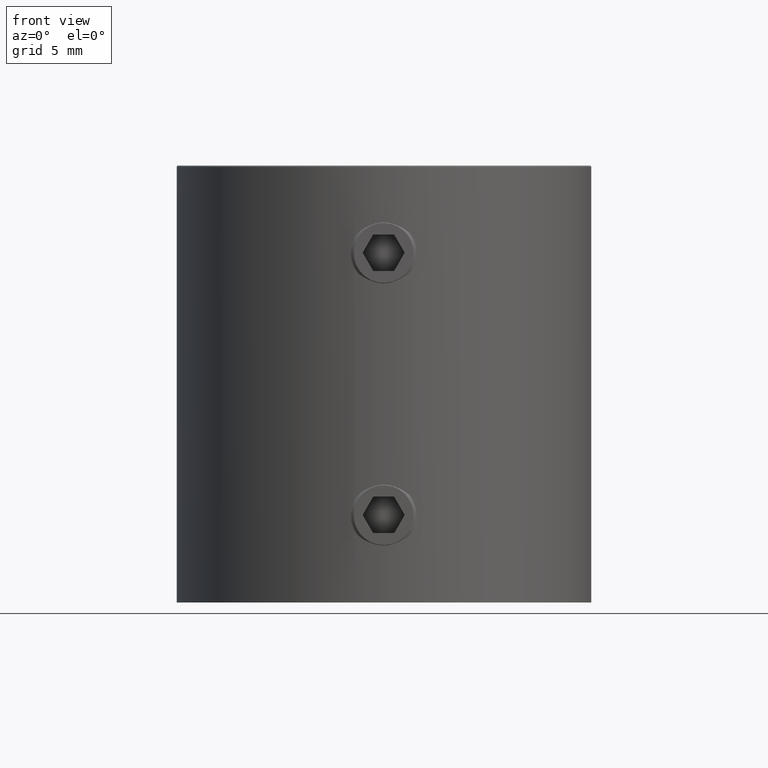
[diagram: clean part render]
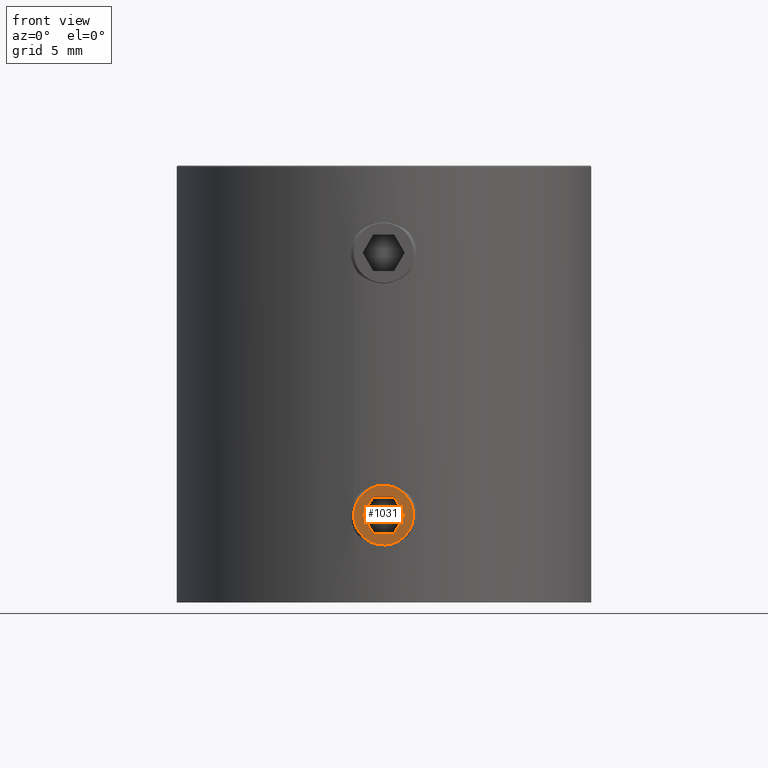
[diagram: same view with one face highlighted and labeled with its STEP entity id]
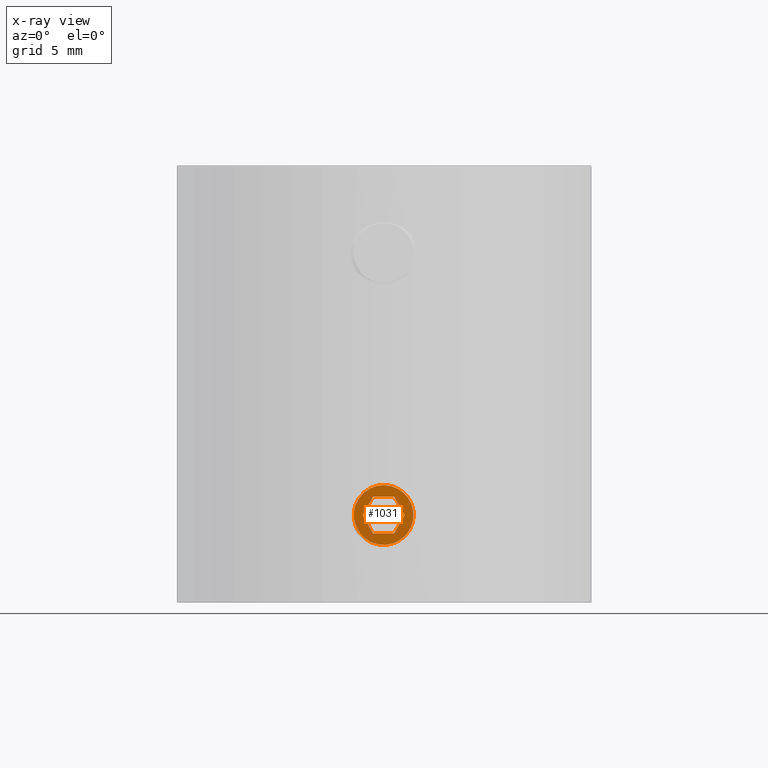
[diagram: x-ray of the same camera — body ghosted, the highlighted face saturated]
A machine part, front view. The second image highlights one B-rep face of the part: STEP entity #1031.
The next image is the same camera in x-ray: the body ghosted, the highlighted face saturated — about 0% of this face is hidden behind the body in this view.
In plain terms, the highlighted planar face has unit normal (-0, -1, 0).
Its self-contained STEP definition (entity closure, byte-faithful):
#361 = VERTEX_POINT ( 'NONE', #13298 ) ;
#741 = DIRECTION ( 'NONE',  ( -0.000000000000000000, 0.000000000000000000, -1.000000000000000000 ) ) ;
#1031 = ADVANCED_FACE ( 'NONE', ( #2178, #10938 ), #11927, .T. ) ;
#1222 = VECTOR ( 'NONE', #741, 1000.000000000000000 ) ;
#1224 = ORIENTED_EDGE ( 'NONE', *, *, #6086, .T. ) ;
#1266 = ORIENTED_EDGE ( 'NONE', *, *, #5324, .F. ) ;
#1318 = DIRECTION ( 'NONE',  ( 0.000000000000000000, 0.000000000000000000, 1.000000000000000000 ) ) ;
#1362 = CARTESIAN_POINT ( 'NONE',  ( 0.000000000000000000, 0.000000000000000000, 0.000000000000000000 ) ) ;
#1396 = VERTEX_POINT ( 'NONE', #5788 ) ;
#1568 = VERTEX_POINT ( 'NONE', #5322 ) ;
#1700 = CARTESIAN_POINT ( 'NONE',  ( 0.000000000000000000, 1.250000000000003331, -0.7216878364870342732 ) ) ;
#1707 = LINE ( 'NONE', #1700, #11053 ) ;
#2178 = FACE_OUTER_BOUND ( 'NONE', #6436, .T. ) ;
#2481 = VERTEX_POINT ( 'NONE', #6824 ) ;
#3444 = DIRECTION ( 'NONE',  ( 0.000000000000000000, 0.8660254037844385966, 0.4999999999999999445 ) ) ;
#3461 = VERTEX_POINT ( 'NONE', #3993 ) ;
#3487 = LINE ( 'NONE', #5705, #13021 ) ;
#3532 = DIRECTION ( 'NONE',  ( -1.000000000000000000, 0.000000000000000000, -0.000000000000000000 ) ) ;
#3551 = ORIENTED_EDGE ( 'NONE', *, *, #7407, .F. ) ;
#3993 = CARTESIAN_POINT ( 'NONE',  ( 2.540223623131397589E-16, 1.250000000000003553, 0.7216878364870303875 ) ) ;
#4149 = DIRECTION ( 'NONE',  ( 0.000000000000000000, -0.8660254037844387076, -0.4999999999999998890 ) ) ;
#4286 = CARTESIAN_POINT ( 'NONE',  ( 0.000000000000000000, 0.000000000000000000, 2.055000000000001048 ) ) ;
#4375 = LINE ( 'NONE', #15090, #1222 ) ;
#4413 = ORIENTED_EDGE ( 'NONE', *, *, #7420, .T. ) ;
#4494 = CARTESIAN_POINT ( 'NONE',  ( 0.000000000000000000, 1.250000000000003553, 0.7216878364870303875 ) ) ;
#4794 = AXIS2_PLACEMENT_3D ( 'NONE', #7339, #3532, #12021 ) ;
#4840 = EDGE_CURVE ( 'NONE', #361, #2481, #8946, .T. ) ;
#5033 = VERTEX_POINT ( 'NONE', #4286 ) ;
#5322 = CARTESIAN_POINT ( 'NONE',  ( 0.000000000000000000, 1.250000000000003331, -0.7216878364870342732 ) ) ;
#5324 = EDGE_CURVE ( 'NONE', #3461, #1568, #15302, .T. ) ;
#5705 = CARTESIAN_POINT ( 'NONE',  ( 0.000000000000000000, -1.249999999999997113, 0.7216878364870309426 ) ) ;
#5788 = CARTESIAN_POINT ( 'NONE',  ( 0.000000000000000000, 3.198396408832238080E-15, 1.443375672974063439 ) ) ;
#5818 = VECTOR ( 'NONE', #11266, 1000.000000000000227 ) ;
#6086 = EDGE_CURVE ( 'NONE', #5033, #5033, #13777, .T. ) ;
#6265 = EDGE_LOOP ( 'NONE', ( #1266, #4413, #3551, #12036, #8914, #9870 ) ) ;
#6408 = AXIS2_PLACEMENT_3D ( 'NONE', #1362, #7404, #1318 ) ;
#6436 = EDGE_LOOP ( 'NONE', ( #1224 ) ) ;
#6824 = CARTESIAN_POINT ( 'NONE',  ( 0.000000000000000000, 3.106768037671063060E-15, -1.443375672974066548 ) ) ;
#7339 = CARTESIAN_POINT ( 'NONE',  ( 2.540223623131397589E-16, 0.000000000000000000, 0.000000000000000000 ) ) ;
#7404 = DIRECTION ( 'NONE',  ( -1.000000000000000000, -0.000000000000000000, -0.000000000000000000 ) ) ;
#7407 = EDGE_CURVE ( 'NONE', #9864, #1396, #3487, .T. ) ;
#7420 = EDGE_CURVE ( 'NONE', #3461, #1396, #10571, .T. ) ;
#7669 = CARTESIAN_POINT ( 'NONE',  ( -0.000000000000000000, -1.249999999999997113, -0.7216878364870337181 ) ) ;
#8690 = VECTOR ( 'NONE', #9300, 1000.000000000000114 ) ;
#8914 = ORIENTED_EDGE ( 'NONE', *, *, #4840, .T. ) ;
#8946 = LINE ( 'NONE', #7669, #5818 ) ;
#9300 = DIRECTION ( 'NONE',  ( 0.000000000000000000, -0.8660254037844383745, 0.5000000000000003331 ) ) ;
#9578 = EDGE_CURVE ( 'NONE', #9864, #361, #4375, .T. ) ;
#9864 = VERTEX_POINT ( 'NONE', #14379 ) ;
#9870 = ORIENTED_EDGE ( 'NONE', *, *, #12106, .F. ) ;
#10571 = LINE ( 'NONE', #4494, #8690 ) ;
#10938 = FACE_BOUND ( 'NONE', #6265, .T. ) ;
#11053 = VECTOR ( 'NONE', #4149, 1000.000000000000114 ) ;
#11266 = DIRECTION ( 'NONE',  ( 0.000000000000000000, 0.8660254037844384856, -0.5000000000000001110 ) ) ;
#11927 = PLANE ( 'NONE',  #4794 ) ;
#12021 = DIRECTION ( 'NONE',  ( -0.000000000000000000, 0.000000000000000000, 1.000000000000000000 ) ) ;
#12036 = ORIENTED_EDGE ( 'NONE', *, *, #9578, .T. ) ;
#12106 = EDGE_CURVE ( 'NONE', #1568, #2481, #1707, .T. ) ;
#12625 = CARTESIAN_POINT ( 'NONE',  ( 0.000000000000000000, 1.250000000000003553, 0.7216878364870303875 ) ) ;
#13021 = VECTOR ( 'NONE', #3444, 1000.000000000000114 ) ;
#13298 = CARTESIAN_POINT ( 'NONE',  ( -0.000000000000000000, -1.249999999999997113, -0.7216878364870337181 ) ) ;
#13777 = CIRCLE ( 'NONE', #6408, 2.055000000000001048 ) ;
#14379 = CARTESIAN_POINT ( 'NONE',  ( 0.000000000000000000, -1.249999999999997113, 0.7216878364870309426 ) ) ;
#14560 = VECTOR ( 'NONE', #15156, 1000.000000000000000 ) ;
#15090 = CARTESIAN_POINT ( 'NONE',  ( 0.000000000000000000, -1.249999999999997113, 0.7216878364870309426 ) ) ;
#15156 = DIRECTION ( 'NONE',  ( 0.000000000000000000, -1.502314598737159031E-16, -1.000000000000000000 ) ) ;
#15302 = LINE ( 'NONE', #12625, #14560 ) ;